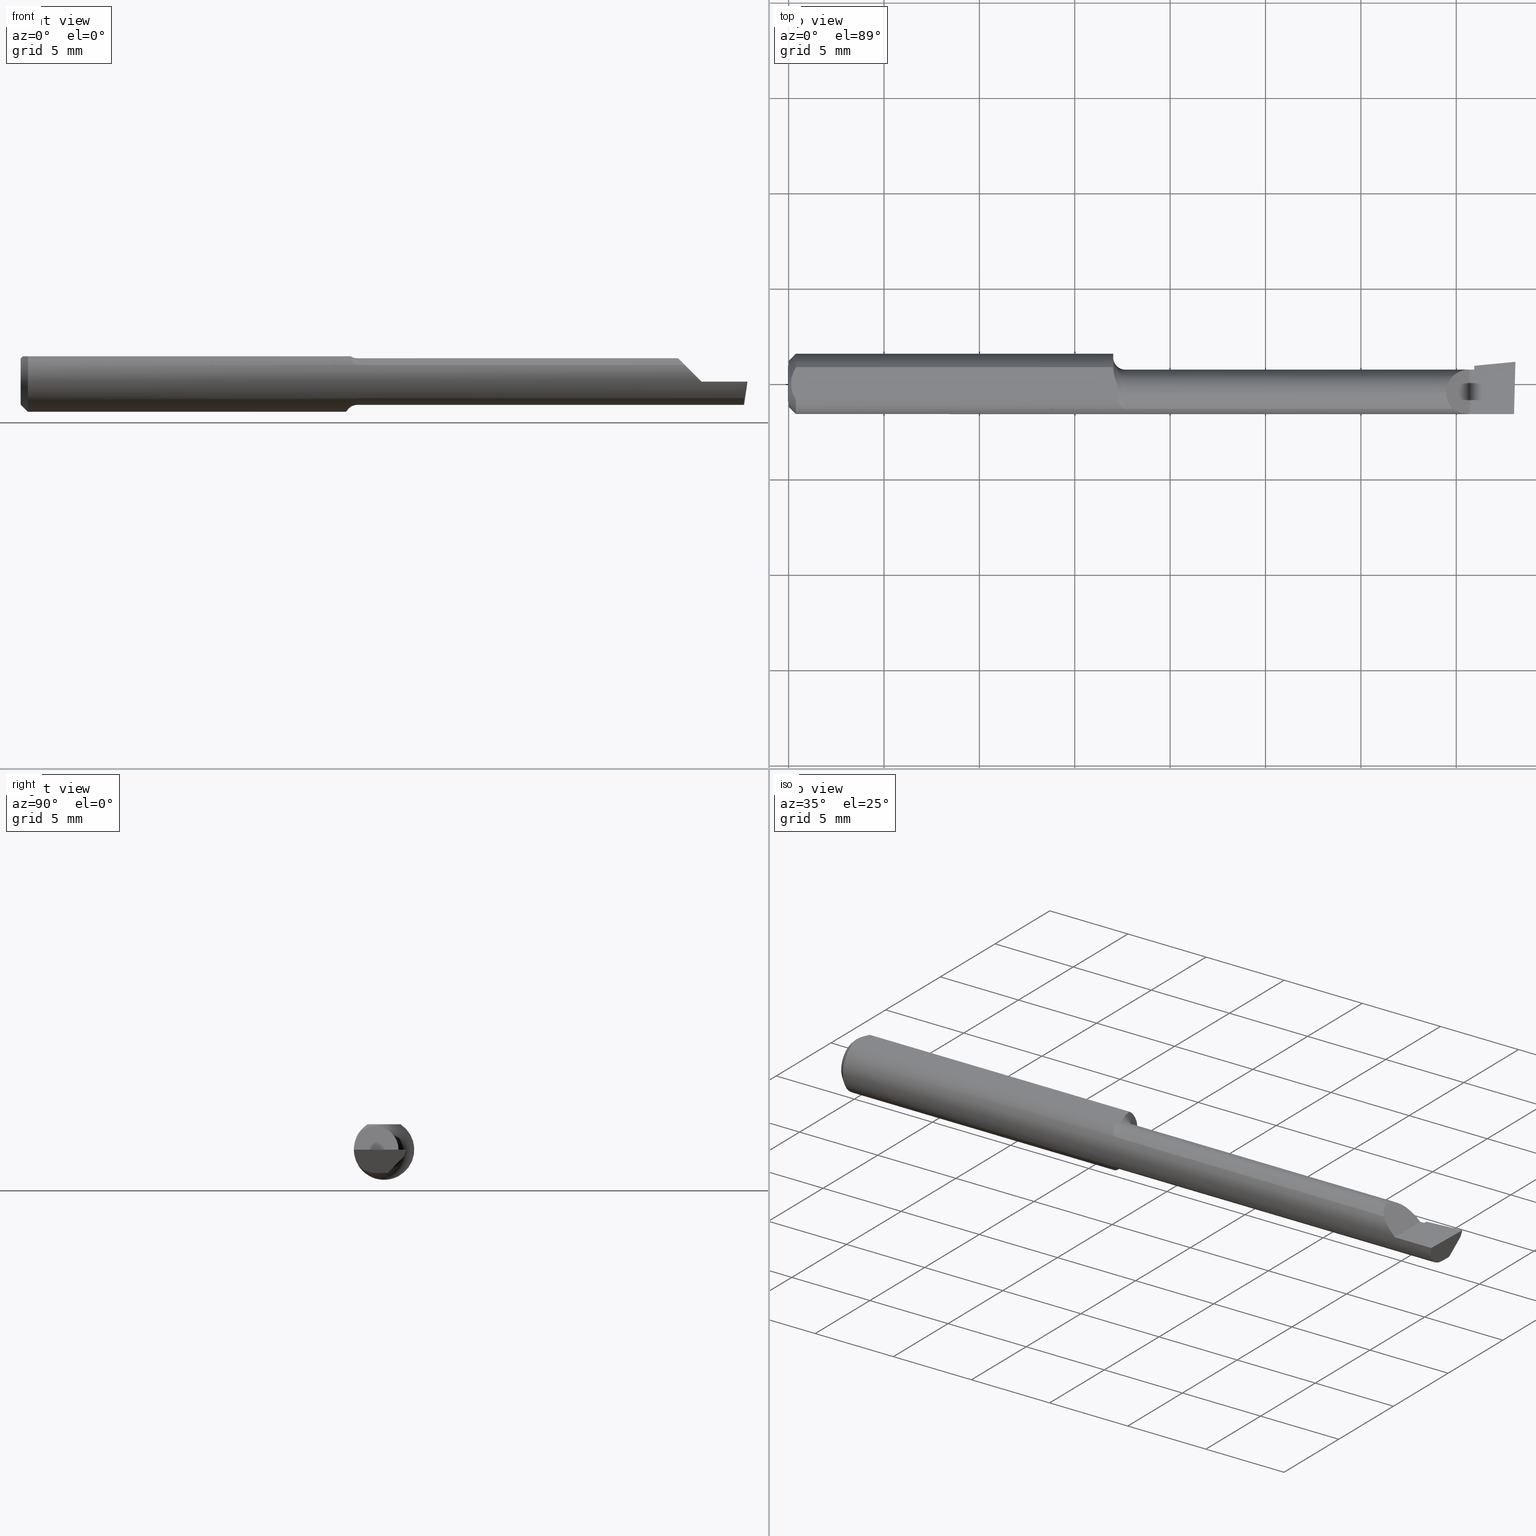
[diagram: canonical four-view strip — front | top / right | iso, engineering-drawing reading convention]
A machine part, canonical four-view strip (front | top / right | iso — engineering-drawing reading convention). The complete STEP part file that produces these views, byte-faithful:
ISO-10303-21;
HEADER;
FILE_DESCRIPTION (( 'STEP AP203' ),
    '1' );
FILE_NAME ('217285-B110700.STEP',
    '2024-04-22T22:16:24',
    ( '' ),
    ( '' ),
    'SwSTEP 2.0',
    'SolidWorks 2022',
    '' );
FILE_SCHEMA (( 'CONFIG_CONTROL_DESIGN' ));
ENDSEC;

DATA;
#1 = CARTESIAN_POINT ( 'NONE',  ( 0.6891789796355746178, -0.05033758282016002894, 0.03680695256572100865 ) ) ;
#2 = CARTESIAN_POINT ( 'NONE',  ( 1.498384822753113355, 0.04264131821163490155, -0.01250862198832625692 ) ) ;
#3 = ADVANCED_BREP_SHAPE_REPRESENTATION ( '217285-B110700', ( #201, #377 ), #418 ) ;
#4 = VERTEX_POINT ( 'NONE', #535 ) ;
#5 = CARTESIAN_POINT ( 'NONE',  ( 0.6936283801985738684, -0.05210000000115985741, 0.03425072991746559714 ) ) ;
#6 = DIRECTION ( 'NONE',  ( 0.000000000000000000, 0.000000000000000000, 1.000000000000000000 ) ) ;
#7 = ORIENTED_EDGE ( 'NONE', *, *, #339, .F. ) ;
#8 = DIRECTION ( 'NONE',  ( -1.000000000000000000, -0.000000000000000000, -0.000000000000000000 ) ) ;
#9 = DIRECTION ( 'NONE',  ( 1.000000000000000000, 0.000000000000000000, 0.000000000000000000 ) ) ;
#10 = ORIENTED_EDGE ( 'NONE', *, *, #544, .F. ) ;
#11 = VECTOR ( 'NONE', #612, 39.37007874015748143 ) ;
#12 = DIRECTION ( 'NONE',  ( 0.000000000000000000, 0.000000000000000000, -1.000000000000000000 ) ) ;
#13 = DIRECTION ( 'NONE',  ( 2.429359850419095176E-34, 4.268512490100411895E-17, 1.000000000000000000 ) ) ;
#14 = LOCAL_TIME ( 15, 16, 24.00000000000000000, #741 ) ;
#15 = EDGE_LOOP ( 'NONE', ( #427, #628, #70, #565 ) ) ;
#16 = ADVANCED_FACE ( 'NONE', ( #730 ), #42, .T. ) ;
#17 = DIRECTION ( 'NONE',  ( 0.000000000000000000, 0.000000000000000000, 1.000000000000000000 ) ) ;
#18 = DIRECTION ( 'NONE',  ( -1.224646799147350495E-16, 0.000000000000000000, -1.000000000000000000 ) ) ;
#19 = AXIS2_PLACEMENT_3D ( 'NONE', #478, #35, #532 ) ;
#20 = VECTOR ( 'NONE', #81, 39.37007874015748143 ) ;
#21 = PRODUCT_DEFINITION_FORMATION_WITH_SPECIFIED_SOURCE ( 'ANY', '', #262, .NOT_KNOWN. ) ;
#22 = CARTESIAN_POINT ( 'NONE',  ( 0.6700000000000000400, 0.03254879782683776229, 0.05235000000000000070 ) ) ;
#23 = CC_DESIGN_PERSON_AND_ORGANIZATION_ASSIGNMENT ( #558, #55, ( #21 ) ) ;
#24 = CARTESIAN_POINT ( 'NONE',  ( 1.415000000000000036, -0.2500000000000000555, 1.040949779275248537E-17 ) ) ;
#25 = EDGE_CURVE ( 'NONE', #99, #4, #219, .T. ) ;
#26 = LINE ( 'NONE', #304, #392 ) ;
#27 = CARTESIAN_POINT ( 'NONE',  ( 1.370749270080770632, -0.05210000000000009068, 0.03425072991922931132 ) ) ;
#28 = CARTESIAN_POINT ( 'NONE',  ( 1.492420971165606458, -0.01839999999999999969, -0.04804999999999998855 ) ) ;
#29 = LINE ( 'NONE', #24, #79 ) ;
#30 = CC_DESIGN_PERSON_AND_ORGANIZATION_ASSIGNMENT ( #489, #737, ( #431 ) ) ;
#31 = CARTESIAN_POINT ( 'NONE',  ( 1.055000000000000160, -0.05210000000000012538, 0.03425072991922926274 ) ) ;
#32 = EDGE_CURVE ( 'NONE', #698, #240, #672, .T. ) ;
#33 = AXIS2_PLACEMENT_3D ( 'NONE', #694, #8, #623 ) ;
#34 = CARTESIAN_POINT ( 'NONE',  ( 1.356949999999999656, 0.009747038327972754393, 0.04804999999999993998 ) ) ;
#35 = DIRECTION ( 'NONE',  ( -1.000000000000000000, -0.000000000000000000, -0.000000000000000000 ) ) ;
#36 = APPROVAL_PERSON_ORGANIZATION ( #435, #114, #215 ) ;
#37 = ORIENTED_EDGE ( 'NONE', *, *, #660, .T. ) ;
#38 = DATE_AND_TIME ( #166, #245 ) ;
#39 =( BOUNDED_CURVE ( )  B_SPLINE_CURVE ( 3, ( #342, #65, #702, #467 ),
 .UNSPECIFIED., .F., .F. ) 
 B_SPLINE_CURVE_WITH_KNOTS ( ( 4, 4 ),
 ( 5.715941252449186827, 6.493234751459776355 ),
 .UNSPECIFIED. ) 
 CURVE ( )  GEOMETRIC_REPRESENTATION_ITEM ( )  RATIONAL_B_SPLINE_CURVE ( ( 1.000000000000000000, 0.9502818019828904728, 0.9502818019828904728, 1.000000000000000000 ) ) 
 REPRESENTATION_ITEM ( '' )  );
#40 = CARTESIAN_POINT ( 'NONE',  ( 1.405000000000000249, 0.02964999999999988131, 1.163414459189982046E-17 ) ) ;
#41 = EDGE_LOOP ( 'NONE', ( #484, #653, #432 ) ) ;
#42 = PLANE ( 'NONE',  #391 ) ;
#43 = DATE_TIME_ROLE ( 'classification_date' ) ;
#44 = CARTESIAN_POINT ( 'NONE',  ( 0.000000000000000000, 0.000000000000000000, 0.000000000000000000 ) ) ;
#45 = B_SPLINE_CURVE_WITH_KNOTS ( 'NONE', 3,
 ( #707, #146, #482, #136, #712, #251 ),
 .UNSPECIFIED., .F., .F.,
 ( 4, 2, 4 ),
 ( 0.002133667072902290223, 0.002585433046183635737, 0.003037199019464981251 ),
 .UNSPECIFIED. ) ;
#46 = ORIENTED_EDGE ( 'NONE', *, *, #284, .T. ) ;
#47 = APPLICATION_PROTOCOL_DEFINITION ( 'international standard', 'config_control_design', 1994, #579 ) ;
#48 = LINE ( 'NONE', #217, #61 ) ;
#49 = EDGE_CURVE ( 'NONE', #533, #734, #104, .T. ) ;
#50 = DIRECTION ( 'NONE',  ( 1.000000000000000000, 0.000000000000000000, 0.000000000000000000 ) ) ;
#51 = SHAPE_DEFINITION_REPRESENTATION ( #94, #3 ) ;
#52 = CARTESIAN_POINT ( 'NONE',  ( 0.6790023436943706248, -0.03635371779854208729, -0.05080473676934859489 ) ) ;
#53 = ORIENTED_EDGE ( 'NONE', *, *, #84, .F. ) ;
#54 = CARTESIAN_POINT ( 'NONE',  ( 0.6702082692914423934, 0.01460127996857727047, -0.06118787137580498914 ) ) ;
#55 = PERSON_AND_ORGANIZATION_ROLE ( 'creator' ) ;
#56 = FACE_OUTER_BOUND ( 'NONE', #500, .T. ) ;
#57 = ORIENTED_EDGE ( 'NONE', *, *, #237, .F. ) ;
#58 = CARTESIAN_POINT ( 'NONE',  ( 0.000000000000000000, 0.000000000000000000, 0.000000000000000000 ) ) ;
#59 = EDGE_CURVE ( 'NONE', #480, #380, #488, .T. ) ;
#60 = FACE_OUTER_BOUND ( 'NONE', #543, .T. ) ;
#61 = VECTOR ( 'NONE', #546, 39.37007874015748143 ) ;
#62 = VERTEX_POINT ( 'NONE', #271 ) ;
#63 = CONICAL_SURFACE ( 'NONE', #300, 0.06235000000000000264, 0.7853981633974601584 ) ;
#64 = CARTESIAN_POINT ( 'NONE',  ( 0.6923254665516394013, -0.05179156103573031439, 0.03472422648579293752 ) ) ;
#65 = CARTESIAN_POINT ( 'NONE',  ( 1.492371467082626468, -0.04299473640227074317, -0.04320958667840185674 ) ) ;
#66 = VERTEX_POINT ( 'NONE', #668 ) ;
#67 = CARTESIAN_POINT ( 'NONE',  ( 0.01500000000000000465, 0.000000000000000000, -0.06235000000000000264 ) ) ;
#68 = CARTESIAN_POINT ( 'NONE',  ( 0.000000000000000000, -0.01839999999999999275, -0.04804999999999994692 ) ) ;
#69 = EDGE_CURVE ( 'NONE', #599, #625, #485, .T. ) ;
#70 = ORIENTED_EDGE ( 'NONE', *, *, #544, .T. ) ;
#71 = FACE_OUTER_BOUND ( 'NONE', #508, .T. ) ;
#72 = DIRECTION ( 'NONE',  ( 0.1053106618241848036, 0.6976485211320169189, 0.7086580314005210823 ) ) ;
#73 = ORIENTED_EDGE ( 'NONE', *, *, #711, .F. ) ;
#74 = ADVANCED_FACE ( 'NONE', ( #428 ), #223, .T. ) ;
#75 = CIRCLE ( 'NONE', #553, 0.04805000000000000243 ) ;
#76 = CARTESIAN_POINT ( 'NONE',  ( 0.6950000000000000622, -0.01839999999999999969, 0.000000000000000000 ) ) ;
#77 = EDGE_CURVE ( 'NONE', #403, #343, #424, .T. ) ;
#78 = CARTESIAN_POINT ( 'NONE',  ( 0.6778289663216180427, -0.001899322570691870226, 0.05234999999999997988 ) ) ;
#79 = VECTOR ( 'NONE', #357, 39.37007874015748143 ) ;
#80 = TOROIDAL_SURFACE ( 'NONE', #181, 0.07304999999999992055, 0.02500000000000001180 ) ;
#81 = DIRECTION ( 'NONE',  ( 0.000000000000000000, -0.6963153109074924352, -0.7177360153954949196 ) ) ;
#82 = DIRECTION ( 'NONE',  ( 0.000000000000000000, 0.000000000000000000, -1.000000000000000000 ) ) ;
#83 = CARTESIAN_POINT ( 'NONE',  ( 1.361790413321597892, -0.04299473640227071541, 0.04320958667840185674 ) ) ;
#84 = EDGE_CURVE ( 'NONE', #119, #289, #629, .T. ) ;
#85 = EDGE_CURVE ( 'NONE', #539, #560, #652, .T. ) ;
#86 = ORIENTED_EDGE ( 'NONE', *, *, #116, .F. ) ;
#87 = ORIENTED_EDGE ( 'NONE', *, *, #303, .T. ) ;
#88 = CARTESIAN_POINT ( 'NONE',  ( 1.493233423732482024, -0.05210000000000012538, -0.03425072991922926274 ) ) ;
#89 = ORIENTED_EDGE ( 'NONE', *, *, #358, .F. ) ;
#90 = ORIENTED_EDGE ( 'NONE', *, *, #588, .F. ) ;
#91 = TOROIDAL_SURFACE ( 'NONE', #280, 0.07304999999999992055, 0.02500000000000001180 ) ;
#92 = PERSON_AND_ORGANIZATION ( #716, #471 ) ;
#93 = CARTESIAN_POINT ( 'NONE',  ( 1.380994055934046782, -0.05883495956508443675, 0.02400594406595336905 ) ) ;
#94 = PRODUCT_DEFINITION_SHAPE ( 'NONE', 'NONE',  #431 ) ;
#95 = ORIENTED_EDGE ( 'NONE', *, *, #49, .F. ) ;
#96 = EDGE_LOOP ( 'NONE', ( #46, #692, #161, #459 ) ) ;
#97 = DATE_TIME_ROLE ( 'creation_date' ) ;
#98 = DIRECTION ( 'NONE',  ( 0.000000000000000000, 1.000000000000000000, -4.268512490100410663E-17 ) ) ;
#99 = VERTEX_POINT ( 'NONE', #283 ) ;
#100 = ORIENTED_EDGE ( 'NONE', *, *, #303, .F. ) ;
#101 = DATE_AND_TIME ( #383, #14 ) ;
#102 = ADVANCED_FACE ( 'NONE', ( #338 ), #626, .T. ) ;
#103 = CARTESIAN_POINT ( 'NONE',  ( 1.415000000000000036, 0.03746543090321039632, 1.856802933193678953E-16 ) ) ;
#104 = LINE ( 'NONE', #254, #107 ) ;
#105 = UNCERTAINTY_MEASURE_WITH_UNIT (LENGTH_MEASURE( 1.000000000000000082E-05 ), #584, 'distance_accuracy_value', 'NONE');
#106 = COORDINATED_UNIVERSAL_TIME_OFFSET ( 8, 0, .BEHIND. ) ;
#107 = VECTOR ( 'NONE', #325, 39.37007874015748854 ) ;
#108 = DIRECTION ( 'NONE',  ( 1.000000000000000000, 0.000000000000000000, 0.000000000000000000 ) ) ;
#109 = ORIENTED_EDGE ( 'NONE', *, *, #25, .T. ) ;
#110 = APPLICATION_CONTEXT ( 'configuration controlled 3d designs of mechanical parts and assemblies' ) ;
#111 = DIRECTION ( 'NONE',  ( -1.000000000000000000, -0.000000000000000000, -0.000000000000000000 ) ) ;
#112 = APPLICATION_PROTOCOL_DEFINITION ( 'international standard', 'config_control_design', 1994, #110 ) ;
#113 = CARTESIAN_POINT ( 'NONE',  ( 0.6747104858884209744, -0.02227973916747847880, -0.05837485801745211089 ) ) ;
#114 = APPROVAL ( #677, 'UNSPECIFIED' ) ;
#115 = ORIENTED_EDGE ( 'NONE', *, *, #472, .F. ) ;
#116 = EDGE_CURVE ( 'NONE', #99, #512, #549, .T. ) ;
#117 = DIRECTION ( 'NONE',  ( 0.000000000000000000, 0.000000000000000000, 1.000000000000000000 ) ) ;
#118 = FACE_OUTER_BOUND ( 'NONE', #257, .T. ) ;
#119 = VERTEX_POINT ( 'NONE', #179 ) ;
#120 = CARTESIAN_POINT ( 'NONE',  ( 0.6723860608652274529, -0.01052139226165771727, -0.06200658662318049574 ) ) ;
#121 = CARTESIAN_POINT ( 'NONE',  ( 1.493103169438388500, 0.007652100972630319388, -0.04804999999999998855 ) ) ;
#122 = AXIS2_PLACEMENT_3D ( 'NONE', #231, #13, #345 ) ;
#123 = ORIENTED_EDGE ( 'NONE', *, *, #69, .F. ) ;
#124 = PLANE ( 'NONE',  #374 ) ;
#125 = EDGE_CURVE ( 'NONE', #512, #99, #226, .T. ) ;
#126 = LINE ( 'NONE', #455, #183 ) ;
#127 = ORIENTED_EDGE ( 'NONE', *, *, #312, .F. ) ;
#128 = CARTESIAN_POINT ( 'NONE',  ( 0.6866024100878113101, -0.04843664215652601635, 0.03931692004732145751 ) ) ;
#129 = FACE_OUTER_BOUND ( 'NONE', #611, .T. ) ;
#130 = EDGE_CURVE ( 'NONE', #172, #274, #352, .T. ) ;
#131 = ORIENTED_EDGE ( 'NONE', *, *, #700, .T. ) ;
#132 = LINE ( 'NONE', #68, #506 ) ;
#133 = DIRECTION ( 'NONE',  ( 0.000000000000000000, 0.000000000000000000, 1.000000000000000000 ) ) ;
#134 = ADVANCED_FACE ( 'NONE', ( #71 ), #578, .T. ) ;
#135 = EDGE_CURVE ( 'NONE', #4, #480, #563, .T. ) ;
#136 = CARTESIAN_POINT ( 'NONE',  ( 0.006057557792978150897, -0.01187252718384441963, 0.05234999999999998682 ) ) ;
#137 = CARTESIAN_POINT ( 'NONE',  ( 1.356949999999999656, -0.03117368152160950728, 0.04804999999999994692 ) ) ;
#138 = CARTESIAN_POINT ( 'NONE',  ( 1.492263437268387616, -0.2497974109750948912, 9.474556785672113677E-19 ) ) ;
#139 = LINE ( 'NONE', #298, #410 ) ;
#140 = CIRCLE ( 'NONE', #705, 0.04804999999999994692 ) ;
#141 = CC_DESIGN_DATE_AND_TIME_ASSIGNMENT ( #38, #97, ( #431 ) ) ;
#142 = CARTESIAN_POINT ( 'NONE',  ( 1.415000000000000036, 0.03316540489603619218, -0.01400000000000000203 ) ) ;
#143 = EDGE_CURVE ( 'NONE', #596, #698, #704, .T. ) ;
#144 = CARTESIAN_POINT ( 'NONE',  ( 0.01500000000000185039, -0.03386738844380016850, 0.05235000000000000070 ) ) ;
#145 = ORIENTED_EDGE ( 'NONE', *, *, #276, .T. ) ;
#146 = CARTESIAN_POINT ( 'NONE',  ( 0.01216137397042176341, -0.02864146636719542074, 0.05235000000000000070 ) ) ;
#147 = CARTESIAN_POINT ( 'NONE',  ( 0.000000000000000000, -0.01839999999999999969, 0.04804999999999994692 ) ) ;
#148 = ADVANCED_FACE ( 'NONE', ( #630 ), #124, .F. ) ;
#149 = EDGE_LOOP ( 'NONE', ( #538, #293 ) ) ;
#150 = DIRECTION ( 'NONE',  ( 1.000000000000000000, 0.000000000000000000, 0.000000000000000000 ) ) ;
#151 = CARTESIAN_POINT ( 'NONE',  ( 0.000000000000000000, 0.000000000000000000, 0.000000000000000000 ) ) ;
#152 = DIRECTION ( 'NONE',  ( 0.000000000000000000, -0.6963153109074924352, -0.7177360153954949196 ) ) ;
#153 = ORIENTED_EDGE ( 'NONE', *, *, #235, .T. ) ;
#154 = CARTESIAN_POINT ( 'NONE',  ( 1.510364203804932526, 0.04234793331252790366, -0.01399999999999999856 ) ) ;
#155 = AXIS2_PLACEMENT_3D ( 'NONE', #305, #247, #529 ) ;
#156 = COORDINATED_UNIVERSAL_TIME_OFFSET ( 8, 0, .BEHIND. ) ;
#157 = LOCAL_TIME ( 15, 16, 24.00000000000000000, #162 ) ;
#158 = PLANE ( 'NONE',  #726 ) ;
#159 = EDGE_LOOP ( 'NONE', ( #90, #366, #115 ) ) ;
#160 = APPROVAL ( #722, 'UNSPECIFIED' ) ;
#161 = ORIENTED_EDGE ( 'NONE', *, *, #614, .T. ) ;
#162 = COORDINATED_UNIVERSAL_TIME_OFFSET ( 8, 0, .BEHIND. ) ;
#163 = CARTESIAN_POINT ( 'NONE',  ( 0.6928708008506145877, -0.05210000000000022946, -0.03425072991922910315 ) ) ;
#164 = ORIENTED_EDGE ( 'NONE', *, *, #711, .T. ) ;
#165 = ORIENTED_EDGE ( 'NONE', *, *, #369, .F. ) ;
#166 = CALENDAR_DATE ( 2024, 22, 4 ) ;
#167 = CARTESIAN_POINT ( 'NONE',  ( 1.493233423732482024, -0.05210000000000012538, -0.03425072991922926274 ) ) ;
#168 = ORIENTED_EDGE ( 'NONE', *, *, #200, .F. ) ;
#169 = CARTESIAN_POINT ( 'NONE',  ( 0.6950000000000000622, -0.01839999999999999969, 0.000000000000000000 ) ) ;
#170 = LINE ( 'NONE', #441, #664 ) ;
#171 = VECTOR ( 'NONE', #194, 39.37007874015748143 ) ;
#172 = VERTEX_POINT ( 'NONE', #67 ) ;
#173 = DIRECTION ( 'NONE',  ( -1.000000000000000000, 5.691349986800549142E-18, -0.000000000000000000 ) ) ;
#174 = DIRECTION ( 'NONE',  ( -0.000000000000000000, 0.000000000000000000, 1.000000000000000000 ) ) ;
#175 = EDGE_LOOP ( 'NONE', ( #453, #265, #381, #504, #225, #519 ) ) ;
#176 = DIRECTION ( 'NONE',  ( 0.000000000000000000, 0.000000000000000000, 1.000000000000000000 ) ) ;
#177 = CARTESIAN_POINT ( 'NONE',  ( 1.055000000000000160, -0.05210000000000012538, -0.03425072991922926274 ) ) ;
#178 = ORIENTED_EDGE ( 'NONE', *, *, #594, .T. ) ;
#179 = CARTESIAN_POINT ( 'NONE',  ( 0.6950000000000000622, -0.01839999999999999969, 0.04804999999999990529 ) ) ;
#180 = DIRECTION ( 'NONE',  ( 0.000000000000000000, -7.598598113218357399E-17, -1.000000000000000000 ) ) ;
#181 = AXIS2_PLACEMENT_3D ( 'NONE', #76, #639, #6 ) ;
#182 = ORIENTED_EDGE ( 'NONE', *, *, #405, .F. ) ;
#183 = VECTOR ( 'NONE', #406, 39.37007874015748143 ) ;
#184 = CARTESIAN_POINT ( 'NONE',  ( 0.6700000000000000400, 0.05464999999999992086, 0.000000000000000000 ) ) ;
#185 = ADVANCED_FACE ( 'NONE', ( #287 ), #460, .T. ) ;
#186 = DIRECTION ( 'NONE',  ( 0.000000000000000000, 0.2936076258024064023, 0.9559260233253795702 ) ) ;
#187 = ORIENTED_EDGE ( 'NONE', *, *, #421, .F. ) ;
#188 = CARTESIAN_POINT ( 'NONE',  ( 0.6739435274990672742, -0.01839999999999994418, -0.05957316929625284391 ) ) ;
#189 = CARTESIAN_POINT ( 'NONE',  ( 0.000000000000000000, 0.000000000000000000, -0.04734999999999964237 ) ) ;
#190 = ADVANCED_FACE ( 'NONE', ( #442 ), #641, .F. ) ;
#191 = AXIS2_PLACEMENT_3D ( 'NONE', #582, #291, #17 ) ;
#192 = AXIS2_PLACEMENT_3D ( 'NONE', #301, #248, #82 ) ;
#193 =( BOUNDED_CURVE ( )  B_SPLINE_CURVE ( 3, ( #420, #34, #709, #473 ),
 .UNSPECIFIED., .F., .F. ) 
 B_SPLINE_CURVE_WITH_KNOTS ( ( 4, 4 ),
 ( 0.000000000000000000, 1.570796326794896558 ),
 .UNSPECIFIED. ) 
 CURVE ( )  GEOMETRIC_REPRESENTATION_ITEM ( )  RATIONAL_B_SPLINE_CURVE ( ( 1.000000000000000000, 0.8047378541243649375, 0.8047378541243649375, 1.000000000000000000 ) ) 
 REPRESENTATION_ITEM ( '' )  );
#194 = DIRECTION ( 'NONE',  ( 0.02617694830787660465, 0.9996573249755572599, -3.158139334224220088E-18 ) ) ;
#195 = DIRECTION ( 'NONE',  ( 0.7071067811865391350, 0.000000000000000000, -0.7071067811865558994 ) ) ;
#196 = CARTESIAN_POINT ( 'NONE',  ( 0.6950000000000000622, -0.05210000000000024334, 0.03425072991922908927 ) ) ;
#197 = CARTESIAN_POINT ( 'NONE',  ( 0.6781439896686971558, -0.03386738844377056717, 0.05235000000000000070 ) ) ;
#198 = CARTESIAN_POINT ( 'NONE',  ( 1.500000000000000222, -0.2500000000000000555, 0.000000000000000000 ) ) ;
#199 = CARTESIAN_POINT ( 'NONE',  ( 0.6801689947020402860, -0.01001121285792194726, 0.05235000000000000764 ) ) ;
#200 = EDGE_CURVE ( 'NONE', #625, #675, #676, .T. ) ;
#201 = MANIFOLD_SOLID_BREP ( 'Extrude7', #703 ) ;
#202 = CARTESIAN_POINT ( 'NONE',  ( 0.6700000000000000400, 0.03254879782683776229, 0.05235000000000000070 ) ) ;
#203 = EDGE_LOOP ( 'NONE', ( #57, #310, #605, #394, #253, #182, #7 ) ) ;
#204 = DIRECTION ( 'NONE',  ( -0.000000000000000000, 0.000000000000000000, 1.000000000000000000 ) ) ;
#205 = FACE_OUTER_BOUND ( 'NONE', #577, .T. ) ;
#206 = CARTESIAN_POINT ( 'NONE',  ( 0.6757332775895888988, 0.004426912553965423741, 0.05234999999999998682 ) ) ;
#207 = ORIENTED_EDGE ( 'NONE', *, *, #502, .F. ) ;
#208 = ORIENTED_EDGE ( 'NONE', *, *, #125, .T. ) ;
#209 = CALENDAR_DATE ( 2024, 22, 4 ) ;
#210 = CARTESIAN_POINT ( 'NONE',  ( 1.497451155291631864, 0.008070764392015438576, -0.04804999999999998855 ) ) ;
#211 = EDGE_CURVE ( 'NONE', #446, #266, #576, .T. ) ;
#212 = EDGE_CURVE ( 'NONE', #512, #172, #139, .T. ) ;
#213 = VERTEX_POINT ( 'NONE', #309 ) ;
#214 = AXIS2_PLACEMENT_3D ( 'NONE', #393, #620, #430 ) ;
#215 = APPROVAL_ROLE ( '' ) ;
#216 = VECTOR ( 'NONE', #399, 39.37007874015748143 ) ;
#217 = CARTESIAN_POINT ( 'NONE',  ( 0.000000000000000000, -0.03386738844375222768, 0.05234999999999997988 ) ) ;
#218 = ORIENTED_EDGE ( 'NONE', *, *, #143, .T. ) ;
#219 = LINE ( 'NONE', #434, #340 ) ;
#220 = DATE_AND_TIME ( #606, #643 ) ;
#221 = CARTESIAN_POINT ( 'NONE',  ( 0.6880636144450135161, -0.04963912592730913842, -0.03775824298307021293 ) ) ;
#222 = ORIENTED_EDGE ( 'NONE', *, *, #382, .F. ) ;
#223 = PLANE ( 'NONE',  #297 ) ;
#224 = DIRECTION ( 'NONE',  ( 0.000000000000000000, 0.000000000000000000, -1.000000000000000000 ) ) ;
#225 = ORIENTED_EDGE ( 'NONE', *, *, #449, .T. ) ;
#226 = CIRCLE ( 'NONE', #680, 0.04734999999999964237 ) ;
#227 = CALENDAR_DATE ( 2024, 22, 4 ) ;
#228 = DIRECTION ( 'NONE',  ( 0.000000000000000000, 0.000000000000000000, -1.000000000000000000 ) ) ;
#229 = ORIENTED_EDGE ( 'NONE', *, *, #382, .T. ) ;
#230 = CARTESIAN_POINT ( 'NONE',  ( 0.6901117046627790463, -0.05090166660896893597, 0.03601608024180035644 ) ) ;
#231 = CARTESIAN_POINT ( 'NONE',  ( 1.500000000000000222, -0.01839999999999999969, -0.04804999999999998855 ) ) ;
#232 = ORIENTED_EDGE ( 'NONE', *, *, #212, .F. ) ;
#233 = CARTESIAN_POINT ( 'NONE',  ( 0.000000000000000000, -0.01839999999999999969, 0.000000000000000000 ) ) ;
#234 = DIRECTION ( 'NONE',  ( -1.000000000000000000, -0.000000000000000000, -0.000000000000000000 ) ) ;
#235 = EDGE_CURVE ( 'NONE', #240, #261, #733, .T. ) ;
#236 = ORIENTED_EDGE ( 'NONE', *, *, #689, .F. ) ;
#237 = EDGE_CURVE ( 'NONE', #603, #62, #477, .T. ) ;
#238 = CARTESIAN_POINT ( 'NONE',  ( 0.01218518006020415101, 0.02868529347538066598, 0.05235000000000000070 ) ) ;
#239 = CARTESIAN_POINT ( 'NONE',  ( 1.415000000000000036, 0.03394043341024438609, -0.01147666661066422747 ) ) ;
#240 = VERTEX_POINT ( 'NONE', #27 ) ;
#241 = CARTESIAN_POINT ( 'NONE',  ( 0.6764444859557653400, 0.002321921504986928370, 0.05234999999999998682 ) ) ;
#242 = CARTESIAN_POINT ( 'NONE',  ( 0.6700000000000000400, -0.01839999999999999969, 0.000000000000000000 ) ) ;
#243 = ORIENTED_EDGE ( 'NONE', *, *, #69, .T. ) ;
#244 = DIMENSIONAL_EXPONENTS ( 1.000000000000000000, 0.000000000000000000, 0.000000000000000000, 0.000000000000000000, 0.000000000000000000, 0.000000000000000000, 0.000000000000000000 ) ;
#245 = LOCAL_TIME ( 15, 16, 24.00000000000000000, #156 ) ;
#246 = LINE ( 'NONE', #654, #706 ) ;
#247 = DIRECTION ( 'NONE',  ( -0.9922060308645477278, 0.02598182930469673801, 0.1218693434051488778 ) ) ;
#248 = DIRECTION ( 'NONE',  ( 1.000000000000000000, 0.000000000000000000, 0.000000000000000000 ) ) ;
#249 = CARTESIAN_POINT ( 'NONE',  ( 1.497171920470529161, -0.06235000000000005121, 3.552677088412709094E-19 ) ) ;
#250 = ADVANCED_FACE ( 'NONE', ( #483 ), #593, .F. ) ;
#251 = CARTESIAN_POINT ( 'NONE',  ( 0.004999999999989946514, 7.898418262501303575E-16, 0.05235000000000000070 ) ) ;
#252 = CARTESIAN_POINT ( 'NONE',  ( 1.494315395341277553, -0.05883495956508443675, -0.02400594406595338293 ) ) ;
#253 = ORIENTED_EDGE ( 'NONE', *, *, #700, .F. ) ;
#254 = CARTESIAN_POINT ( 'NONE',  ( 1.510364203804932526, 0.04234793331252790366, -0.01399999999999999856 ) ) ;
#255 = LINE ( 'NONE', #659, #493 ) ;
#256 = CC_DESIGN_APPROVAL ( #491, ( #452 ) ) ;
#257 = EDGE_LOOP ( 'NONE', ( #306, #438, #53, #100, #681, #615, #550, #286 ) ) ;
#258 = DIRECTION ( 'NONE',  ( 0.7071067811865391350, 8.659560562355035164E-17, 0.7071067811865558994 ) ) ;
#259 = EDGE_CURVE ( 'NONE', #480, #172, #566, .T. ) ;
#260 = PLANE ( 'NONE',  #433 ) ;
#261 = VERTEX_POINT ( 'NONE', #720 ) ;
#262 = PRODUCT ( '217285-B110700', '217285-B110700', '', ( #372 ) ) ;
#263 = ORIENTED_EDGE ( 'NONE', *, *, #590, .T. ) ;
#264 = DIRECTION ( 'NONE',  ( 0.000000000000000000, -1.000000000000000000, 0.000000000000000000 ) ) ;
#265 = ORIENTED_EDGE ( 'NONE', *, *, #85, .T. ) ;
#266 = VERTEX_POINT ( 'NONE', #474 ) ;
#267 = APPROVAL_ROLE ( '' ) ;
#268 = CIRCLE ( 'NONE', #192, 0.06235000000000000264 ) ;
#269 = CARTESIAN_POINT ( 'NONE',  ( 0.6868557543361659690, -0.04856891343705606323, -0.03913748562448242374 ) ) ;
#270 = EDGE_LOOP ( 'NONE', ( #222, #243, #497, #350 ) ) ;
#271 = CARTESIAN_POINT ( 'NONE',  ( 0.6809817975471365026, -0.01840000000000274055, 0.05235000000000000070 ) ) ;
#272 = APPROVAL_ROLE ( '' ) ;
#273 = LINE ( 'NONE', #607, #551 ) ;
#274 = VERTEX_POINT ( 'NONE', #144 ) ;
#275 = CARTESIAN_POINT ( 'NONE',  ( 0.6739435274990672742, -0.01839999999999994418, -0.05957316929625284391 ) ) ;
#276 = EDGE_CURVE ( 'NONE', #572, #240, #443, .T. ) ;
#277 = FACE_OUTER_BOUND ( 'NONE', #15, .T. ) ;
#278 = ORIENTED_EDGE ( 'NONE', *, *, #312, .T. ) ;
#279 = DIRECTION ( 'NONE',  ( -1.000000000000000000, -0.000000000000000000, -0.000000000000000000 ) ) ;
#280 = AXIS2_PLACEMENT_3D ( 'NONE', #738, #665, #436 ) ;
#281 = DIRECTION ( 'NONE',  ( -1.000000000000000000, -0.000000000000000000, -0.000000000000000000 ) ) ;
#282 = ORIENTED_EDGE ( 'NONE', *, *, #211, .F. ) ;
#283 = CARTESIAN_POINT ( 'NONE',  ( 0.000000000000000000, 6.717187693324805358E-18, 0.04734999999999964237 ) ) ;
#284 = EDGE_CURVE ( 'NONE', #343, #385, #29, .T. ) ;
#285 = FACE_OUTER_BOUND ( 'NONE', #203, .T. ) ;
#286 = ORIENTED_EDGE ( 'NONE', *, *, #461, .F. ) ;
#287 = FACE_OUTER_BOUND ( 'NONE', #685, .T. ) ;
#288 = DIRECTION ( 'NONE',  ( -0.000000000000000000, 1.000000000000000000, -0.000000000000000000 ) ) ;
#289 = VERTEX_POINT ( 'NONE', #422 ) ;
#290 = CARTESIAN_POINT ( 'NONE',  ( 0.004999999999989946514, 7.898418262501303575E-16, 0.05235000000000000070 ) ) ;
#291 = DIRECTION ( 'NONE',  ( -1.000000000000000000, -0.000000000000000000, -0.000000000000000000 ) ) ;
#292 = VECTOR ( 'NONE', #735, 39.37007874015748143 ) ;
#293 = ORIENTED_EDGE ( 'NONE', *, *, #330, .T. ) ;
#294 = AXIS2_PLACEMENT_3D ( 'NONE', #634, #281, #507 ) ;
#295 = DIRECTION ( 'NONE',  ( -1.000000000000000000, -0.000000000000000000, -0.000000000000000000 ) ) ;
#296 = DIRECTION ( 'NONE',  ( 0.000000000000000000, -0.6963153109074924352, -0.7177360153954949196 ) ) ;
#297 = AXIS2_PLACEMENT_3D ( 'NONE', #718, #721, #204 ) ;
#298 = CARTESIAN_POINT ( 'NONE',  ( 0.01500000000000000465, 0.000000000000000000, -0.06235000000000000264 ) ) ;
#299 = AXIS2_PLACEMENT_3D ( 'NONE', #379, #264, #224 ) ;
#300 = AXIS2_PLACEMENT_3D ( 'NONE', #592, #649, #536 ) ;
#301 = CARTESIAN_POINT ( 'NONE',  ( 0.6700000000000000400, 0.000000000000000000, 0.000000000000000000 ) ) ;
#302 = CARTESIAN_POINT ( 'NONE',  ( 0.6699999999999991518, 0.02370330699131434002, 0.05235000000000000070 ) ) ;
#303 = EDGE_CURVE ( 'NONE', #261, #119, #655, .T. ) ;
#304 = CARTESIAN_POINT ( 'NONE',  ( 1.415000000000000036, 0.01335851473338080936, -0.03441620828959360973 ) ) ;
#305 = CARTESIAN_POINT ( 'NONE',  ( 1.490100436386402993, -0.04484455226154455965, -0.06130493938609107157 ) ) ;
#306 = ORIENTED_EDGE ( 'NONE', *, *, #588, .T. ) ;
#307 = ORIENTED_EDGE ( 'NONE', *, *, #353, .F. ) ;
#308 = LINE ( 'NONE', #138, #171 ) ;
#309 = CARTESIAN_POINT ( 'NONE',  ( 1.500000000000005551, 0.04565000000000925956, 2.866279458899363243E-14 ) ) ;
#310 = ORIENTED_EDGE ( 'NONE', *, *, #590, .F. ) ;
#311 = VECTOR ( 'NONE', #72, 39.37007874015748143 ) ;
#312 = EDGE_CURVE ( 'NONE', #385, #213, #598, .T. ) ;
#313 = DIRECTION ( 'NONE',  ( -0.06894566448119622548, 0.7160281025913036723, -0.6946583704589932573 ) ) ;
#314 = CARTESIAN_POINT ( 'NONE',  ( 0.6809817975474691254, -0.02106709414031688460, 0.05235000000000000070 ) ) ;
#315 = LOCAL_TIME ( 15, 16, 24.00000000000000000, #444 ) ;
#316 = ORIENTED_EDGE ( 'NONE', *, *, #85, .F. ) ;
#317 = ORIENTED_EDGE ( 'NONE', *, *, #614, .F. ) ;
#318 = APPROVAL_DATE_TIME ( #101, #114 ) ;
#319 = LINE ( 'NONE', #210, #361 ) ;
#320 = ORIENTED_EDGE ( 'NONE', *, *, #594, .F. ) ;
#321 = ORIENTED_EDGE ( 'NONE', *, *, #556, .F. ) ;
#322 = DESIGN_CONTEXT ( 'detailed design', #110, 'design' ) ;
#323 = PERSON_AND_ORGANIZATION_ROLE ( 'classification_officer' ) ;
#324 = DIRECTION ( 'NONE',  ( 1.000000000000000000, 0.000000000000000000, 0.000000000000000000 ) ) ;
#325 = DIRECTION ( 'NONE',  ( -0.9953961983671800740, -0.09584575252021031166, 0.000000000000000000 ) ) ;
#326 = AXIS2_PLACEMENT_3D ( 'NONE', #58, #111, #447 ) ;
#327 = APPROVAL_DATE_TIME ( #387, #491 ) ;
#328 = AXIS2_PLACEMENT_3D ( 'NONE', #531, #414, #359 ) ;
#329 = CARTESIAN_POINT ( 'NONE',  ( 0.000000000000000000, -0.01839999999999999969, 0.000000000000000000 ) ) ;
#330 = EDGE_CURVE ( 'NONE', #580, #456, #255, .T. ) ;
#331 = EDGE_LOOP ( 'NONE', ( #165, #164, #127, #608, #547, #10 ) ) ;
#332 = DIRECTION ( 'NONE',  ( -1.000000000000000000, -0.000000000000000000, -0.000000000000000000 ) ) ;
#333 = PERSON_AND_ORGANIZATION ( #716, #471 ) ;
#334 = ORIENTED_EDGE ( 'NONE', *, *, #32, .F. ) ;
#335 = DIRECTION ( 'NONE',  ( -0.000000000000000000, 0.000000000000000000, 1.000000000000000000 ) ) ;
#336 = PLANE ( 'NONE',  #341 ) ;
#337 = ORIENTED_EDGE ( 'NONE', *, *, #339, .T. ) ;
#338 = FACE_OUTER_BOUND ( 'NONE', #515, .T. ) ;
#339 = EDGE_CURVE ( 'NONE', #62, #596, #562, .T. ) ;
#340 = VECTOR ( 'NONE', #258, 39.37007874015748143 ) ;
#341 = AXIS2_PLACEMENT_3D ( 'NONE', #44, #324, #228 ) ;
#342 = CARTESIAN_POINT ( 'NONE',  ( 1.493233423732482024, -0.05210000000000012538, -0.03425072991922926274 ) ) ;
#343 = VERTEX_POINT ( 'NONE', #415 ) ;
#344 = CARTESIAN_POINT ( 'NONE',  ( 1.415000000000000036, 0.03746543090320910568, 0.000000000000000000 ) ) ;
#345 = DIRECTION ( 'NONE',  ( 0.000000000000000000, -1.000000000000000000, 4.268512490100411895E-17 ) ) ;
#346 = ORIENTED_EDGE ( 'NONE', *, *, #130, .T. ) ;
#347 = DIRECTION ( 'NONE',  ( -1.000000000000000000, -0.000000000000000000, -0.000000000000000000 ) ) ;
#348 = LINE ( 'NONE', #520, #589 ) ;
#349 = CC_DESIGN_DATE_AND_TIME_ASSIGNMENT ( #220, #43, ( #452 ) ) ;
#350 = ORIENTED_EDGE ( 'NONE', *, *, #472, .T. ) ;
#351 = PLANE ( 'NONE',  #122 ) ;
#352 = CIRCLE ( 'NONE', #33, 0.06235000000000000264 ) ;
#353 = EDGE_CURVE ( 'NONE', #456, #662, #647, .T. ) ;
#354 =( LENGTH_UNIT ( ) NAMED_UNIT ( * ) SI_UNIT ( $, .METRE. ) );
#355 = B_SPLINE_CURVE_WITH_KNOTS ( 'NONE', 3,
 ( #384, #163, #548, #221, #269, #496, #396, #52, #732, #742, #113, #727 ),
 .UNSPECIFIED., .F., .F.,
 ( 4, 2, 2, 2, 2, 4 ),
 ( 1.968188672663559732E-07, 0.0001598826679621229488, 0.0003195685170569795351, 0.0006389402152466981287, 0.0009583119134364166680, 0.001277683611626135316 ),
 .UNSPECIFIED. ) ;
#356 = CARTESIAN_POINT ( 'NONE',  ( 1.415000000000000036, 0.0001316211261978900615, -0.04805000000000000243 ) ) ;
#357 = DIRECTION ( 'NONE',  ( 0.000000000000000000, 1.000000000000000000, 0.000000000000000000 ) ) ;
#358 = EDGE_CURVE ( 'NONE', #66, #539, #355, .T. ) ;
#359 = DIRECTION ( 'NONE',  ( 0.000000000000000000, -8.537024980200821325E-17, 1.000000000000000000 ) ) ;
#360 = VECTOR ( 'NONE', #173, 39.37007874015748143 ) ;
#361 = VECTOR ( 'NONE', #445, 39.37007874015748854 ) ;
#362 = CIRCLE ( 'NONE', #328, 0.02500000000000000486 ) ;
#363 = DIRECTION ( 'NONE',  ( -1.000000000000000000, -0.000000000000000000, -0.000000000000000000 ) ) ;
#364 = CARTESIAN_POINT ( 'NONE',  ( 1.392739685260043325, -0.06235000000000000264, 0.01226031473995679161 ) ) ;
#365 = ORIENTED_EDGE ( 'NONE', *, *, #511, .T. ) ;
#366 = ORIENTED_EDGE ( 'NONE', *, *, #353, .T. ) ;
#367 = DIRECTION ( 'NONE',  ( 0.000000000000000000, 0.000000000000000000, 1.000000000000000000 ) ) ;
#368 = DIRECTION ( 'NONE',  ( -1.000000000000000000, -0.000000000000000000, -0.000000000000000000 ) ) ;
#369 = EDGE_CURVE ( 'NONE', #266, #572, #170, .T. ) ;
#370 = ORIENTED_EDGE ( 'NONE', *, *, #211, .T. ) ;
#371 = CARTESIAN_POINT ( 'NONE',  ( 0.6950000000000000622, -0.01839999999999999969, 0.000000000000000000 ) ) ;
#372 = MECHANICAL_CONTEXT ( 'NONE', #579, 'mechanical' ) ;
#373 = CARTESIAN_POINT ( 'NONE',  ( 0.6809817975471365026, -0.01840000000000274055, 0.05235000000000000070 ) ) ;
#374 = AXIS2_PLACEMENT_3D ( 'NONE', #344, #573, #335 ) ;
#375 = VECTOR ( 'NONE', #408, 39.37007874015748143 ) ;
#376 = EDGE_LOOP ( 'NONE', ( #492, #229, #307, #555, #317, #95 ) ) ;
#377 = AXIS2_PLACEMENT_3D ( 'NONE', #151, #673, #609 ) ;
#378 = PERSON_AND_ORGANIZATION_ROLE ( 'design_supplier' ) ;
#379 = CARTESIAN_POINT ( 'NONE',  ( 0.6950000000000000622, -0.01839999999999999969, 0.07304999999999992055 ) ) ;
#380 = VERTEX_POINT ( 'NONE', #723 ) ;
#381 = ORIENTED_EDGE ( 'NONE', *, *, #511, .F. ) ;
#382 = EDGE_CURVE ( 'NONE', #599, #662, #319, .T. ) ;
#383 = CALENDAR_DATE ( 2024, 22, 4 ) ;
#384 = CARTESIAN_POINT ( 'NONE',  ( 0.6950000000000000622, -0.05210000000000025028, -0.03425072991922908233 ) ) ;
#385 = VERTEX_POINT ( 'NONE', #103 ) ;
#386 = DIRECTION ( 'NONE',  ( 0.000000000000000000, 0.6963153109074923242, 0.7177360153954949196 ) ) ;
#387 = DATE_AND_TIME ( #227, #315 ) ;
#388 = DIRECTION ( 'NONE',  ( -0.7071067811865432429, 0.000000000000000000, -0.7071067811865517916 ) ) ;
#389 = ORIENTED_EDGE ( 'NONE', *, *, #116, .T. ) ;
#390 = DIRECTION ( 'NONE',  ( -1.000000000000000000, -0.000000000000000000, -0.000000000000000000 ) ) ;
#391 = AXIS2_PLACEMENT_3D ( 'NONE', #154, #313, #386 ) ;
#392 = VECTOR ( 'NONE', #296, 39.37007874015748143 ) ;
#393 = CARTESIAN_POINT ( 'NONE',  ( 0.6950000000000000622, -0.01839999999999999969, 0.000000000000000000 ) ) ;
#394 = ORIENTED_EDGE ( 'NONE', *, *, #135, .F. ) ;
#395 = CARTESIAN_POINT ( 'NONE',  ( 0.01500000000000000465, 0.03386738844375223462, 0.05234999999999997988 ) ) ;
#396 = CARTESIAN_POINT ( 'NONE',  ( 0.6819606783407131667, -0.04239780856895218608, -0.04588180363204262535 ) ) ;
#397 = ORIENTED_EDGE ( 'NONE', *, *, #130, .F. ) ;
#398 = CARTESIAN_POINT ( 'NONE',  ( 0.006064493299689855191, 0.01189382783781397362, 0.05235000000000000070 ) ) ;
#399 = DIRECTION ( 'NONE',  ( -1.000000000000000000, -0.000000000000000000, -0.000000000000000000 ) ) ;
#400 = ORIENTED_EDGE ( 'NONE', *, *, #212, .T. ) ;
#401 = CARTESIAN_POINT ( 'NONE',  ( 0.6815797100125446928, -0.04200879032723225937, 0.04631940421101467253 ) ) ;
#402 = DIRECTION ( 'NONE',  ( 0.000000000000000000, 1.000000000000000000, -7.598598113218357399E-17 ) ) ;
#403 = VERTEX_POINT ( 'NONE', #40 ) ;
#404 = CARTESIAN_POINT ( 'NONE',  ( 0.009669996313769786342, 0.02323004575534281385, 0.05234999999999998682 ) ) ;
#405 = EDGE_CURVE ( 'NONE', #596, #274, #48, .T. ) ;
#406 = DIRECTION ( 'NONE',  ( 0.000000000000000000, -1.000000000000000000, 7.598598113218357399E-17 ) ) ;
#407 = ORIENTED_EDGE ( 'NONE', *, *, #660, .F. ) ;
#408 = DIRECTION ( 'NONE',  ( 0.000000000000000000, -0.2936076258024064023, -0.9559260233253795702 ) ) ;
#409 = ADVANCED_FACE ( 'NONE', ( #684 ), #91, .F. ) ;
#410 = VECTOR ( 'NONE', #195, 39.37007874015748143 ) ;
#411 = CARTESIAN_POINT ( 'NONE',  ( 1.500000000000000222, 0.1123499999999999915, 0.05234999999999998682 ) ) ;
#412 = CIRCLE ( 'NONE', #214, 0.04804999999999990529 ) ;
#413 = CARTESIAN_POINT ( 'NONE',  ( 1.356949999999999878, -0.01839999999999999969, 0.04804999999999994692 ) ) ;
#414 = DIRECTION ( 'NONE',  ( -0.000000000000000000, 1.000000000000000000, 1.224646799147353207E-16 ) ) ;
#415 = CARTESIAN_POINT ( 'NONE',  ( 1.415000000000000036, 0.02964999999999999927, 1.836970198721027715E-16 ) ) ;
#416 = FACE_OUTER_BOUND ( 'NONE', #423, .T. ) ;
#417 = CARTESIAN_POINT ( 'NONE',  ( 1.405000000000000249, -0.06235000000000005121, 1.163414459189982046E-17 ) ) ;
#418 =( GEOMETRIC_REPRESENTATION_CONTEXT ( 3 ) GLOBAL_UNCERTAINTY_ASSIGNED_CONTEXT ( ( #105 ) ) GLOBAL_UNIT_ASSIGNED_CONTEXT ( ( #584, #522, #663 ) ) REPRESENTATION_CONTEXT ( 'NONE', 'WORKASPACE' ) );
#419 = ADVANCED_FACE ( 'NONE', ( #674 ), #158, .T. ) ;
#420 = CARTESIAN_POINT ( 'NONE',  ( 1.356949999999999878, -0.01839999999999999969, 0.04804999999999994692 ) ) ;
#421 = EDGE_CURVE ( 'NONE', #289, #66, #412, .T. ) ;
#422 = CARTESIAN_POINT ( 'NONE',  ( 0.6950000000000000622, -0.01839999999999999275, -0.04804999999999990529 ) ) ;
#423 = EDGE_LOOP ( 'NONE', ( #86, #109, #717, #667, #232 ) ) ;
#424 = LINE ( 'NONE', #657, #587 ) ;
#425 = CARTESIAN_POINT ( 'NONE',  ( 0.000000000000000000, -0.01839999999999999969, 0.000000000000000000 ) ) ;
#426 = CARTESIAN_POINT ( 'NONE',  ( 1.495666027076596682, -0.06235000000000003040, -0.01226031473995679681 ) ) ;
#427 = ORIENTED_EDGE ( 'NONE', *, *, #235, .F. ) ;
#428 = FACE_OUTER_BOUND ( 'NONE', #96, .T. ) ;
#429 = APPROVAL_DATE_TIME ( #669, #160 ) ;
#430 = DIRECTION ( 'NONE',  ( 0.000000000000000000, 0.000000000000000000, 1.000000000000000000 ) ) ;
#431 = PRODUCT_DEFINITION ( 'UNKNOWN', '', #21, #322 ) ;
#432 = ORIENTED_EDGE ( 'NONE', *, *, #421, .T. ) ;
#433 = AXIS2_PLACEMENT_3D ( 'NONE', #490, #388, #450 ) ;
#434 = CARTESIAN_POINT ( 'NONE',  ( 0.01500000000000000465, 7.635672792683746671E-18, 0.06235000000000000264 ) ) ;
#435 = PERSON_AND_ORGANIZATION ( #716, #471 ) ;
#436 = DIRECTION ( 'NONE',  ( 0.000000000000000000, 0.000000000000000000, 1.000000000000000000 ) ) ;
#437 = ORIENTED_EDGE ( 'NONE', *, *, #32, .T. ) ;
#438 = ORIENTED_EDGE ( 'NONE', *, *, #521, .T. ) ;
#439 = ADVANCED_FACE ( 'NONE', ( #56 ), #336, .F. ) ;
#440 = APPROVAL_STATUS ( 'not_yet_approved' ) ;
#441 = CARTESIAN_POINT ( 'NONE',  ( 2.249639673992775738E-32, -0.06234999999999999570, 1.836970198721025250E-16 ) ) ;
#442 = FACE_OUTER_BOUND ( 'NONE', #638, .T. ) ;
#443 =( BOUNDED_CURVE ( )  B_SPLINE_CURVE ( 3, ( #417, #364, #93, #714 ),
 .UNSPECIFIED., .F., .T. ) 
 B_SPLINE_CURVE_WITH_KNOTS ( ( 4, 4 ),
 ( 4.712388980384689674, 5.293951277779025411 ),
 .UNSPECIFIED. ) 
 CURVE ( )  GEOMETRIC_REPRESENTATION_ITEM ( )  RATIONAL_B_SPLINE_CURVE ( ( 1.000000000000000000, 0.9720134746468970244, 0.9720134746468970244, 1.000000000000000000 ) ) 
 REPRESENTATION_ITEM ( '' )  );
#444 = COORDINATED_UNIVERSAL_TIME_OFFSET ( 8, 0, .BEHIND. ) ;
#445 = DIRECTION ( 'NONE',  ( -0.9953961983671800740, -0.09584575252021028391, 2.116984158397002882E-18 ) ) ;
#446 = VERTEX_POINT ( 'NONE', #167 ) ;
#447 = DIRECTION ( 'NONE',  ( 0.000000000000000000, 0.000000000000000000, 1.000000000000000000 ) ) ;
#448 = PERSON_AND_ORGANIZATION ( #716, #471 ) ;
#449 = EDGE_CURVE ( 'NONE', #62, #119, #470, .T. ) ;
#450 = DIRECTION ( 'NONE',  ( -0.7071067811865516806, 0.000000000000000000, 0.7071067811865431318 ) ) ;
#451 = ADVANCED_FACE ( 'NONE', ( #277 ), #260, .F. ) ;
#452 = SECURITY_CLASSIFICATION ( '', '', #541 ) ;
#453 = ORIENTED_EDGE ( 'NONE', *, *, #621, .F. ) ;
#454 = CARTESIAN_POINT ( 'NONE',  ( 0.6713962500143421108, -0.002002297547419344334, -0.06287403108402093987 ) ) ;
#455 = CARTESIAN_POINT ( 'NONE',  ( 0.6700000000000000400, 0.1123499999999999915, 0.05234999999999998682 ) ) ;
#456 = VERTEX_POINT ( 'NONE', #624 ) ;
#457 = CARTESIAN_POINT ( 'NONE',  ( 0.004999999999999278459, 0.005945714695019506738, 0.05235000000000000070 ) ) ;
#458 = CARTESIAN_POINT ( 'NONE',  ( 1.498163195397632652, 0.04117310982593899021, -0.01399999999999999856 ) ) ;
#459 = ORIENTED_EDGE ( 'NONE', *, *, #736, .F. ) ;
#460 = PLANE ( 'NONE',  #725 ) ;
#461 = EDGE_CURVE ( 'NONE', #456, #580, #140, .T. ) ;
#462 = VECTOR ( 'NONE', #537, 39.37007874015748143 ) ;
#463 = DIRECTION ( 'NONE',  ( 0.000000000000000000, 0.000000000000000000, -1.000000000000000000 ) ) ;
#464 = ORIENTED_EDGE ( 'NONE', *, *, #25, .F. ) ;
#465 = CARTESIAN_POINT ( 'NONE',  ( 0.6796390223050100543, -0.02881514531779551247, 0.05234999999999998682 ) ) ;
#466 = ADVANCED_FACE ( 'NONE', ( #118 ), #486, .T. ) ;
#467 = CARTESIAN_POINT ( 'NONE',  ( 1.492420971165606458, -0.01839999999999999969, -0.04804999999999998855 ) ) ;
#468 = PLANE ( 'NONE',  #715 ) ;
#469 = DIRECTION ( 'NONE',  ( -1.000000000000000000, 0.000000000000000000, 1.224646799147350495E-16 ) ) ;
#470 = CIRCLE ( 'NONE', #299, 0.02500000000000000486 ) ;
#471 = ORGANIZATION ( 'UNSPECIFIED', 'UNSPECIFIED', '' ) ;
#472 = EDGE_CURVE ( 'NONE', #675, #662, #273, .T. ) ;
#473 = CARTESIAN_POINT ( 'NONE',  ( 1.405000000000000249, 0.02964999999999988131, 1.163414459189982046E-17 ) ) ;
#474 = CARTESIAN_POINT ( 'NONE',  ( 1.497171920470529161, -0.06235000000000005121, 3.552677088412709094E-19 ) ) ;
#475 = DIRECTION ( 'NONE',  ( 0.1240019227989370698, 0.3022330132596649510, 0.9451342385281308323 ) ) ;
#476 = CARTESIAN_POINT ( 'NONE',  ( 1.415000000000000036, -0.01839999999999999969, 0.000000000000000000 ) ) ;
#477 = B_SPLINE_CURVE_WITH_KNOTS ( 'NONE', 3,
 ( #202, #302, #713, #206, #241, #78, #650, #199, #586, #526 ),
 .UNSPECIFIED., .F., .F.,
 ( 4, 2, 2, 2, 4 ),
 ( 0.008710904206567183714, 0.009350419755586120152, 0.009510298642840853828, 0.009670177530095589238, 0.009989935304605060060 ),
 .UNSPECIFIED. ) ;
#478 = CARTESIAN_POINT ( 'NONE',  ( 0.01500000000000000465, 0.000000000000000000, 0.000000000000000000 ) ) ;
#479 = ORIENTED_EDGE ( 'NONE', *, *, #689, .T. ) ;
#480 = VERTEX_POINT ( 'NONE', #559 ) ;
#481 = ADVANCED_FACE ( 'NONE', ( #510 ), #80, .F. ) ;
#482 = CARTESIAN_POINT ( 'NONE',  ( 0.009678036133109314473, -0.02325481837211496733, 0.05235000000000000070 ) ) ;
#483 = FACE_OUTER_BOUND ( 'NONE', #595, .T. ) ;
#484 = ORIENTED_EDGE ( 'NONE', *, *, #358, .T. ) ;
#485 = LINE ( 'NONE', #498, #292 ) ;
#486 = CYLINDRICAL_SURFACE ( 'NONE', #601, 0.04804999999999994692 ) ;
#487 = ORIENTED_EDGE ( 'NONE', *, *, #143, .F. ) ;
#488 = LINE ( 'NONE', #724, #523 ) ;
#489 = PERSON_AND_ORGANIZATION ( #716, #471 ) ;
#490 = CARTESIAN_POINT ( 'NONE',  ( 1.405000000000000249, -0.2500000000000000555, 1.163414459189982046E-17 ) ) ;
#491 = APPROVAL ( #440, 'UNSPECIFIED' ) ;
#492 = ORIENTED_EDGE ( 'NONE', *, *, #516, .F. ) ;
#493 = VECTOR ( 'NONE', #152, 39.37007874015748143 ) ;
#494 = ORIENTED_EDGE ( 'NONE', *, *, #516, .T. ) ;
#495 = CIRCLE ( 'NONE', #294, 0.04805000000000000243 ) ;
#496 = CARTESIAN_POINT ( 'NONE',  ( 0.6836313994831700880, -0.04510599191766700294, -0.04319271381807374133 ) ) ;
#497 = ORIENTED_EDGE ( 'NONE', *, *, #200, .T. ) ;
#498 = CARTESIAN_POINT ( 'NONE',  ( 1.492426164563412261, -0.01820167213927955524, -0.04804999999999998855 ) ) ;
#499 = DIRECTION ( 'NONE',  ( 0.000000000000000000, 3.553392291446756231E-15, 1.000000000000000000 ) ) ;
#500 = EDGE_LOOP ( 'NONE', ( #208, #389 ) ) ;
#501 = CARTESIAN_POINT ( 'NONE',  ( 0.6700000000000000400, 0.02282614954851990355, -0.05862499217990976147 ) ) ;
#502 = EDGE_CURVE ( 'NONE', #385, #734, #571, .T. ) ;
#503 = CARTESIAN_POINT ( 'NONE',  ( 1.415000000000000036, 0.03746543090320910568, 0.000000000000000000 ) ) ;
#504 = ORIENTED_EDGE ( 'NONE', *, *, #237, .T. ) ;
#505 = CARTESIAN_POINT ( 'NONE',  ( 0.6781439896686971558, -0.03386738844377056717, 0.05235000000000000070 ) ) ;
#506 = VECTOR ( 'NONE', #234, 39.37007874015748143 ) ;
#507 = DIRECTION ( 'NONE',  ( 0.000000000000000000, 0.000000000000000000, 1.000000000000000000 ) ) ;
#508 = EDGE_LOOP ( 'NONE', ( #320, #370, #728, #145, #334, #487, #600, #397, #744, #671, #407, #316, #89 ) ) ;
#509 = CARTESIAN_POINT ( 'NONE',  ( 0.6852324438157196829, -0.04692169178955610254, 0.04112849538229043644 ) ) ;
#510 = FACE_OUTER_BOUND ( 'NONE', #41, .T. ) ;
#511 = EDGE_CURVE ( 'NONE', #603, #560, #568, .T. ) ;
#512 = VERTEX_POINT ( 'NONE', #189 ) ;
#513 = CARTESIAN_POINT ( 'NONE',  ( 0.6700000000000000400, 0.03016902173913011548, -0.05456512281030707900 ) ) ;
#514 = LINE ( 'NONE', #2, #311 ) ;
#515 = EDGE_LOOP ( 'NONE', ( #622, #168, #321, #178, #187 ) ) ;
#516 = EDGE_CURVE ( 'NONE', #599, #533, #514, .T. ) ;
#517 = CARTESIAN_POINT ( 'NONE',  ( 0.6797417421283760142, -0.03819491529868389301, 0.04955034320923032420 ) ) ;
#518 = PLANE ( 'NONE',  #651 ) ;
#519 = ORIENTED_EDGE ( 'NONE', *, *, #84, .T. ) ;
#520 = CARTESIAN_POINT ( 'NONE',  ( 1.405000000000000249, -0.2500000000000000555, 1.163414459189982046E-17 ) ) ;
#521 = EDGE_CURVE ( 'NONE', #675, #289, #132, .T. ) ;
#522 =( NAMED_UNIT ( * ) PLANE_ANGLE_UNIT ( ) SI_UNIT ( $, .RADIAN. ) );
#523 = VECTOR ( 'NONE', #50, 39.37007874015748143 ) ;
#524 = CYLINDRICAL_SURFACE ( 'NONE', #633, 0.04804999999999994692 ) ;
#525 = AXIS2_PLACEMENT_3D ( 'NONE', #242, #295, #133 ) ;
#526 = CARTESIAN_POINT ( 'NONE',  ( 0.6809817975471365026, -0.01840000000000274055, 0.05235000000000000070 ) ) ;
#527 = CONICAL_SURFACE ( 'NONE', #617, 0.06235000000000000264, 0.7853981633974601584 ) ;
#528 = FACE_OUTER_BOUND ( 'NONE', #331, .T. ) ;
#529 = DIRECTION ( 'NONE',  ( 0.1219104985252842943, 0.000000000000000000, 0.9925410975618675913 ) ) ;
#530 = ADVANCED_FACE ( 'NONE', ( #637 ), #351, .F. ) ;
#531 = CARTESIAN_POINT ( 'NONE',  ( 0.6950000000000000622, -0.01839999999999999275, -0.07304999999999992055 ) ) ;
#532 = DIRECTION ( 'NONE',  ( 0.000000000000000000, 0.000000000000000000, 1.000000000000000000 ) ) ;
#533 = VERTEX_POINT ( 'NONE', #458 ) ;
#534 = EDGE_CURVE ( 'NONE', #698, #119, #631, .T. ) ;
#535 = CARTESIAN_POINT ( 'NONE',  ( 0.004999999999989946514, 7.898418262501303575E-16, 0.05235000000000000070 ) ) ;
#536 = DIRECTION ( 'NONE',  ( 0.000000000000000000, 0.000000000000000000, -1.000000000000000000 ) ) ;
#537 = DIRECTION ( 'NONE',  ( 0.9953961983671787417, 0.09584575252022461966, -1.219008768213806398E-16 ) ) ;
#538 = ORIENTED_EDGE ( 'NONE', *, *, #461, .T. ) ;
#539 = VERTEX_POINT ( 'NONE', #188 ) ;
#540 = CC_DESIGN_SECURITY_CLASSIFICATION ( #452, ( #21 ) ) ;
#541 = SECURITY_CLASSIFICATION_LEVEL ( 'unclassified' ) ;
#542 = CARTESIAN_POINT ( 'NONE',  ( 0.6806711879428685164, -0.02367561104898163390, 0.05235000000000000070 ) ) ;
#543 = EDGE_LOOP ( 'NONE', ( #236, #688, #207, #278 ) ) ;
#544 = EDGE_CURVE ( 'NONE', #572, #403, #348, .T. ) ;
#545 = PERSON_AND_ORGANIZATION ( #716, #471 ) ;
#546 = DIRECTION ( 'NONE',  ( -1.000000000000000000, -0.000000000000000000, -0.000000000000000000 ) ) ;
#547 = ORIENTED_EDGE ( 'NONE', *, *, #77, .F. ) ;
#548 = CARTESIAN_POINT ( 'NONE',  ( 0.6910018602471944549, -0.05138041438525064314, -0.03535223831097198538 ) ) ;
#549 = CIRCLE ( 'NONE', #326, 0.04734999999999964237 ) ;
#550 = ORIENTED_EDGE ( 'NONE', *, *, #736, .T. ) ;
#551 = VECTOR ( 'NONE', #98, 39.37007874015748143 ) ;
#552 = ORIENTED_EDGE ( 'NONE', *, *, #125, .F. ) ;
#553 = AXIS2_PLACEMENT_3D ( 'NONE', #476, #597, #367 ) ;
#554 = DIRECTION ( 'NONE',  ( -1.000000000000000000, -0.000000000000000000, -0.000000000000000000 ) ) ;
#555 = ORIENTED_EDGE ( 'NONE', *, *, #330, .F. ) ;
#556 = EDGE_CURVE ( 'NONE', #446, #625, #39, .T. ) ;
#557 = DIRECTION ( 'NONE',  ( 0.000000000000000000, 0.000000000000000000, 1.000000000000000000 ) ) ;
#558 = PERSON_AND_ORGANIZATION ( #716, #471 ) ;
#559 = CARTESIAN_POINT ( 'NONE',  ( 0.01500000000000000465, 0.03386738844375223462, 0.05234999999999997988 ) ) ;
#560 = VERTEX_POINT ( 'NONE', #574 ) ;
#561 = DIRECTION ( 'NONE',  ( 0.000000000000000000, 0.000000000000000000, 1.000000000000000000 ) ) ;
#562 = B_SPLINE_CURVE_WITH_KNOTS ( 'NONE', 3,
 ( #373, #314, #542, #465, #708, #197 ),
 .UNSPECIFIED., .F., .F.,
 ( 4, 2, 4 ),
 ( 0.0004198066361325403055, 0.0006196367099741891546, 0.0008194667838158380038 ),
 .UNSPECIFIED. ) ;
#563 = B_SPLINE_CURVE_WITH_KNOTS ( 'NONE', 3,
 ( #290, #457, #398, #404, #238, #395 ),
 .UNSPECIFIED., .F., .F.,
 ( 4, 2, 4 ),
 ( 0.003037199019464981251, 0.003488061124369675782, 0.003938923229274369879 ),
 .UNSPECIFIED. ) ;
#564 = CARTESIAN_POINT ( 'NONE',  ( 1.405000000000000249, -0.06235000000000005121, 1.163414459189982046E-17 ) ) ;
#565 = ORIENTED_EDGE ( 'NONE', *, *, #648, .F. ) ;
#566 = CIRCLE ( 'NONE', #19, 0.06235000000000000264 ) ;
#567 = DIRECTION ( 'NONE',  ( -1.000000000000000000, -0.000000000000000000, -0.000000000000000000 ) ) ;
#568 = CIRCLE ( 'NONE', #525, 0.07304999999999992055 ) ;
#569 = CC_DESIGN_APPROVAL ( #160, ( #431 ) ) ;
#570 = ADVANCED_FACE ( 'NONE', ( #129 ), #527, .T. ) ;
#571 = LINE ( 'NONE', #239, #375 ) ;
#572 = VERTEX_POINT ( 'NONE', #564 ) ;
#573 = DIRECTION ( 'NONE',  ( -1.000000000000000000, 0.000000000000000000, -0.000000000000000000 ) ) ;
#574 = CARTESIAN_POINT ( 'NONE',  ( 0.6700000000000000400, 0.03016902173913011548, -0.05456512281030707900 ) ) ;
#575 = ADVANCED_FACE ( 'NONE', ( #285 ), #468, .F. ) ;
#576 =( BOUNDED_CURVE ( )  B_SPLINE_CURVE ( 3, ( #88, #252, #426, #249 ),
 .UNSPECIFIED., .F., .F. ) 
 B_SPLINE_CURVE_WITH_KNOTS ( ( 4, 4 ),
 ( 0.7791845851203702544, 1.360746882514706657 ),
 .UNSPECIFIED. ) 
 CURVE ( )  GEOMETRIC_REPRESENTATION_ITEM ( )  RATIONAL_B_SPLINE_CURVE ( ( 1.000000000000000000, 0.9720134746468970244, 0.9720134746468970244, 1.000000000000000000 ) ) 
 REPRESENTATION_ITEM ( '' )  );
#577 = EDGE_LOOP ( 'NONE', ( #153, #87, #635, #437 ) ) ;
#578 = CYLINDRICAL_SURFACE ( 'NONE', #640, 0.06235000000000000264 ) ;
#579 = APPLICATION_CONTEXT ( 'configuration controlled 3d designs of mechanical parts and assemblies' ) ;
#580 = VERTEX_POINT ( 'NONE', #642 ) ;
#581 = AXIS2_PLACEMENT_3D ( 'NONE', #371, #390, #561 ) ;
#582 = CARTESIAN_POINT ( 'NONE',  ( 0.6950000000000000622, -0.01839999999999999969, 0.000000000000000000 ) ) ;
#583 = ADVANCED_FACE ( 'NONE', ( #60 ), #518, .T. ) ;
#584 =( CONVERSION_BASED_UNIT ( 'INCH', #658 ) LENGTH_UNIT ( ) NAMED_UNIT ( #244 ) );
#585 = PLANE ( 'NONE',  #683 ) ;
#586 = CARTESIAN_POINT ( 'NONE',  ( 0.6809817975474822260, -0.01413225355780895788, 0.05235000000000000764 ) ) ;
#587 = VECTOR ( 'NONE', #150, 39.37007874015748143 ) ;
#588 = EDGE_CURVE ( 'NONE', #456, #675, #495, .T. ) ;
#589 = VECTOR ( 'NONE', #288, 39.37007874015748143 ) ;
#590 = EDGE_CURVE ( 'NONE', #380, #603, #126, .T. ) ;
#591 = CARTESIAN_POINT ( 'NONE',  ( 1.415000000000000036, 0.01335851473338080936, -0.03441620828959360973 ) ) ;
#592 = CARTESIAN_POINT ( 'NONE',  ( 0.01500000000000000465, 0.000000000000000000, 0.000000000000000000 ) ) ;
#593 = PLANE ( 'NONE',  #155 ) ;
#594 = EDGE_CURVE ( 'NONE', #446, #66, #687, .T. ) ;
#595 = EDGE_LOOP ( 'NONE', ( #661, #123, #494, #479, #73, #282 ) ) ;
#596 = VERTEX_POINT ( 'NONE', #627 ) ;
#597 = DIRECTION ( 'NONE',  ( -1.000000000000000000, -0.000000000000000000, -0.000000000000000000 ) ) ;
#598 = LINE ( 'NONE', #710, #462 ) ;
#599 = VERTEX_POINT ( 'NONE', #121 ) ;
#600 = ORIENTED_EDGE ( 'NONE', *, *, #405, .T. ) ;
#601 = AXIS2_PLACEMENT_3D ( 'NONE', #329, #554, #679 ) ;
#602 = CARTESIAN_POINT ( 'NONE',  ( 1.370749270080770632, -0.05210000000000009068, 0.03425072991922931132 ) ) ;
#603 = VERTEX_POINT ( 'NONE', #22 ) ;
#604 = CC_DESIGN_PERSON_AND_ORGANIZATION_ASSIGNMENT ( #545, #731, ( #262 ) ) ;
#605 = ORIENTED_EDGE ( 'NONE', *, *, #59, .F. ) ;
#606 = CALENDAR_DATE ( 2024, 22, 4 ) ;
#607 = CARTESIAN_POINT ( 'NONE',  ( 1.415000000000000036, -0.01839999999999999969, -0.04804999999999998855 ) ) ;
#608 = ORIENTED_EDGE ( 'NONE', *, *, #284, .F. ) ;
#609 = DIRECTION ( 'NONE',  ( 1.000000000000000000, 0.000000000000000000, 0.000000000000000000 ) ) ;
#610 = DIRECTION ( 'NONE',  ( -1.000000000000000000, -0.000000000000000000, -0.000000000000000000 ) ) ;
#611 = EDGE_LOOP ( 'NONE', ( #464, #552, #400, #346, #131 ) ) ;
#612 = DIRECTION ( 'NONE',  ( 1.000000000000000000, 0.000000000000000000, 0.000000000000000000 ) ) ;
#613 = CARTESIAN_POINT ( 'NONE',  ( 1.415000000000000036, -0.01839999999999999969, 0.000000000000000000 ) ) ;
#614 = EDGE_CURVE ( 'NONE', #734, #580, #26, .T. ) ;
#615 = ORIENTED_EDGE ( 'NONE', *, *, #77, .T. ) ;
#616 = CARTESIAN_POINT ( 'NONE',  ( 0.000000000000000000, 0.000000000000000000, 0.000000000000000000 ) ) ;
#617 = AXIS2_PLACEMENT_3D ( 'NONE', #691, #9, #463 ) ;
#618 = PERSON_AND_ORGANIZATION ( #716, #471 ) ;
#619 = CC_DESIGN_APPROVAL ( #114, ( #21 ) ) ;
#620 = DIRECTION ( 'NONE',  ( -1.000000000000000000, -0.000000000000000000, -0.000000000000000000 ) ) ;
#621 = EDGE_CURVE ( 'NONE', #539, #289, #362, .T. ) ;
#622 = ORIENTED_EDGE ( 'NONE', *, *, #521, .F. ) ;
#623 = DIRECTION ( 'NONE',  ( 0.000000000000000000, 0.000000000000000000, 1.000000000000000000 ) ) ;
#624 = CARTESIAN_POINT ( 'NONE',  ( 1.415000000000000036, 0.007456147106387405604, -0.04050015008383116288 ) ) ;
#625 = VERTEX_POINT ( 'NONE', #28 ) ;
#626 = CYLINDRICAL_SURFACE ( 'NONE', #743, 0.04804999999999994692 ) ;
#627 = CARTESIAN_POINT ( 'NONE',  ( 0.6781439896686971558, -0.03386738844377056717, 0.05235000000000000070 ) ) ;
#628 = ORIENTED_EDGE ( 'NONE', *, *, #276, .F. ) ;
#629 = CIRCLE ( 'NONE', #581, 0.04804999999999990529 ) ;
#630 = FACE_OUTER_BOUND ( 'NONE', #149, .T. ) ;
#631 = CIRCLE ( 'NONE', #191, 0.04804999999999990529 ) ;
#632 = CC_DESIGN_PERSON_AND_ORGANIZATION_ASSIGNMENT ( #448, #378, ( #21 ) ) ;
#633 = AXIS2_PLACEMENT_3D ( 'NONE', #425, #363, #644 ) ;
#634 = CARTESIAN_POINT ( 'NONE',  ( 1.415000000000000036, -0.01839999999999999969, 0.000000000000000000 ) ) ;
#635 = ORIENTED_EDGE ( 'NONE', *, *, #534, .F. ) ;
#636 = DIRECTION ( 'NONE',  ( 1.000000000000000000, 0.000000000000000000, 0.000000000000000000 ) ) ;
#637 = FACE_OUTER_BOUND ( 'NONE', #270, .T. ) ;
#638 = EDGE_LOOP ( 'NONE', ( #656, #337, #218, #739 ) ) ;
#639 = DIRECTION ( 'NONE',  ( -1.000000000000000000, -0.000000000000000000, -0.000000000000000000 ) ) ;
#640 = AXIS2_PLACEMENT_3D ( 'NONE', #616, #279, #117 ) ;
#641 = TOROIDAL_SURFACE ( 'NONE', #693, 0.07304999999999992055, 0.02500000000000001180 ) ;
#642 = CARTESIAN_POINT ( 'NONE',  ( 1.415000000000000036, 0.02286474879319023643, -0.02461753454420039650 ) ) ;
#643 = LOCAL_TIME ( 15, 16, 24.00000000000000000, #106 ) ;
#644 = DIRECTION ( 'NONE',  ( 0.000000000000000000, 0.000000000000000000, 1.000000000000000000 ) ) ;
#645 = CC_DESIGN_PERSON_AND_ORGANIZATION_ASSIGNMENT ( #92, #323, ( #452 ) ) ;
#646 = CARTESIAN_POINT ( 'NONE',  ( 1.415000000000000036, -0.01839999999999999969, -0.04804999999999998855 ) ) ;
#647 = LINE ( 'NONE', #591, #20 ) ;
#648 = EDGE_CURVE ( 'NONE', #261, #403, #193, .T. ) ;
#649 = DIRECTION ( 'NONE',  ( 1.000000000000000000, 0.000000000000000000, 0.000000000000000000 ) ) ;
#650 = CARTESIAN_POINT ( 'NONE',  ( 0.6784726880402973670, -0.003926822060867695384, 0.05235000000000000070 ) ) ;
#651 = AXIS2_PLACEMENT_3D ( 'NONE', #696, #701, #186 ) ;
#652 = B_SPLINE_CURVE_WITH_KNOTS ( 'NONE', 3,
 ( #275, #120, #454, #54, #501, #513 ),
 .UNSPECIFIED., .F., .F.,
 ( 4, 2, 4 ),
 ( 0.001277683611626135316, 0.001926233481642343481, 0.002574783351658551430 ),
 .UNSPECIFIED. ) ;
#653 = ORIENTED_EDGE ( 'NONE', *, *, #621, .T. ) ;
#654 = CARTESIAN_POINT ( 'NONE',  ( 1.500188977433813520, 0.04611059946466813247, 0.001440373173037448303 ) ) ;
#655 = LINE ( 'NONE', #147, #695 ) ;
#656 = ORIENTED_EDGE ( 'NONE', *, *, #449, .F. ) ;
#657 = CARTESIAN_POINT ( 'NONE',  ( 2.249639673992775738E-32, 0.02964999999999994029, 1.836970198721025250E-16 ) ) ;
#658 = LENGTH_MEASURE_WITH_UNIT ( LENGTH_MEASURE( 0.02539999999999999897 ), #354 );
#659 = CARTESIAN_POINT ( 'NONE',  ( 1.415000000000000036, 0.01335851473338080936, -0.03441620828959360973 ) ) ;
#660 = EDGE_CURVE ( 'NONE', #560, #380, #268, .T. ) ;
#661 = ORIENTED_EDGE ( 'NONE', *, *, #556, .T. ) ;
#662 = VERTEX_POINT ( 'NONE', #356 ) ;
#663 =( NAMED_UNIT ( * ) SI_UNIT ( $, .STERADIAN. ) SOLID_ANGLE_UNIT ( ) );
#664 = VECTOR ( 'NONE', #610, 39.37007874015748143 ) ;
#665 = DIRECTION ( 'NONE',  ( -1.000000000000000000, -0.000000000000000000, -0.000000000000000000 ) ) ;
#666 = APPROVAL_PERSON_ORGANIZATION ( #618, #160, #267 ) ;
#667 = ORIENTED_EDGE ( 'NONE', *, *, #259, .T. ) ;
#668 = CARTESIAN_POINT ( 'NONE',  ( 0.6950000000000000622, -0.05210000000000025028, -0.03425072991922908233 ) ) ;
#669 = DATE_AND_TIME ( #209, #157 ) ;
#670 = DIRECTION ( 'NONE',  ( -1.000000000000000000, 0.000000000000000000, -0.000000000000000000 ) ) ;
#671 = ORIENTED_EDGE ( 'NONE', *, *, #59, .T. ) ;
#672 = LINE ( 'NONE', #31, #11 ) ;
#673 = DIRECTION ( 'NONE',  ( 0.000000000000000000, 0.000000000000000000, 1.000000000000000000 ) ) ;
#674 = FACE_OUTER_BOUND ( 'NONE', #159, .T. ) ;
#675 = VERTEX_POINT ( 'NONE', #646 ) ;
#676 = LINE ( 'NONE', #682, #360 ) ;
#677 = APPROVAL_STATUS ( 'not_yet_approved' ) ;
#678 = ADVANCED_FACE ( 'NONE', ( #205 ), #524, .T. ) ;
#679 = DIRECTION ( 'NONE',  ( 0.000000000000000000, 0.000000000000000000, 1.000000000000000000 ) ) ;
#680 = AXIS2_PLACEMENT_3D ( 'NONE', #740, #567, #176 ) ;
#681 = ORIENTED_EDGE ( 'NONE', *, *, #648, .T. ) ;
#682 = CARTESIAN_POINT ( 'NONE',  ( 1.500000000000000222, -0.01839999999999999969, -0.04804999999999998855 ) ) ;
#683 = AXIS2_PLACEMENT_3D ( 'NONE', #198, #18, #469 ) ;
#684 = FACE_OUTER_BOUND ( 'NONE', #175, .T. ) ;
#685 = EDGE_LOOP ( 'NONE', ( #37, #263, #365 ) ) ;
#686 = DIRECTION ( 'NONE',  ( 0.000000000000000000, 0.000000000000000000, 1.000000000000000000 ) ) ;
#687 = LINE ( 'NONE', #177, #216 ) ;
#688 = ORIENTED_EDGE ( 'NONE', *, *, #49, .T. ) ;
#689 = EDGE_CURVE ( 'NONE', #533, #213, #246, .T. ) ;
#690 = CARTESIAN_POINT ( 'NONE',  ( 0.6950000000000000622, -0.05210000000000024334, 0.03425072991922908927 ) ) ;
#691 = CARTESIAN_POINT ( 'NONE',  ( 0.01500000000000000465, 0.000000000000000000, 0.000000000000000000 ) ) ;
#692 = ORIENTED_EDGE ( 'NONE', *, *, #502, .T. ) ;
#693 = AXIS2_PLACEMENT_3D ( 'NONE', #169, #332, #557 ) ;
#694 = CARTESIAN_POINT ( 'NONE',  ( 0.01500000000000000465, 0.000000000000000000, 0.000000000000000000 ) ) ;
#695 = VECTOR ( 'NONE', #368, 39.37007874015748143 ) ;
#696 = CARTESIAN_POINT ( 'NONE',  ( 1.509953961983671489, 0.04660845752520201279, 0.000000000000000000 ) ) ;
#697 = APPROVAL_PERSON_ORGANIZATION ( #333, #491, #272 ) ;
#698 = VERTEX_POINT ( 'NONE', #196 ) ;
#699 = PRODUCT_RELATED_PRODUCT_CATEGORY ( 'detail', '', ( #262 ) ) ;
#700 = EDGE_CURVE ( 'NONE', #274, #4, #45, .T. ) ;
#701 = DIRECTION ( 'NONE',  ( -0.09165774897393340337, 0.9519021185660613282, -0.2923717047227306631 ) ) ;
#702 = CARTESIAN_POINT ( 'NONE',  ( 1.492086480543131755, -0.03117368152160952116, -0.04804999999999996774 ) ) ;
#703 = CLOSED_SHELL ( 'NONE', ( #466, #678, #481, #409, #729, #74, #419, #530, #134, #575, #719, #451, #439, #570, #190, #185, #102, #583, #16, #148, #250 ) ) ;
#704 = B_SPLINE_CURVE_WITH_KNOTS ( 'NONE', 3,
 ( #505, #517, #401, #509, #128, #1, #230, #64, #5, #690 ),
 .UNSPECIFIED., .F., .F.,
 ( 4, 2, 2, 2, 4 ),
 ( 3.799952872679359677E-07, 0.0004056523638566376347, 0.0006082885481413224937, 0.0007096066402836618062, 0.0008109247324260011186 ),
 .UNSPECIFIED. ) ;
#705 = AXIS2_PLACEMENT_3D ( 'NONE', #613, #108, #499 ) ;
#706 = VECTOR ( 'NONE', #475, 39.37007874015748854 ) ;
#707 = CARTESIAN_POINT ( 'NONE',  ( 0.01500000000000185039, -0.03386738844380016850, 0.05235000000000000070 ) ) ;
#708 = CARTESIAN_POINT ( 'NONE',  ( 0.6789259844007440314, -0.03134776909451145871, 0.05235000000000000070 ) ) ;
#709 = CARTESIAN_POINT ( 'NONE',  ( 1.376852961672026865, 0.02964999999999994376, 0.02814703832797275582 ) ) ;
#710 = CARTESIAN_POINT ( 'NONE',  ( 0.8348153170171558335, -0.01839999999999999969, 8.146162928567849885E-17 ) ) ;
#711 = EDGE_CURVE ( 'NONE', #266, #213, #308, .T. ) ;
#712 = CARTESIAN_POINT ( 'NONE',  ( 0.004999999999998894218, -0.005957634400466962389, 0.05235000000000000070 ) ) ;
#713 = CARTESIAN_POINT ( 'NONE',  ( 0.6723037607715414143, 0.01498942864105872082, 0.05235000000000000070 ) ) ;
#714 = CARTESIAN_POINT ( 'NONE',  ( 1.370749270080770632, -0.05210000000000009068, 0.03425072991922931132 ) ) ;
#715 = AXIS2_PLACEMENT_3D ( 'NONE', #411, #180, #402 ) ;
#716 = PERSON ( 'UNSPECIFIED', 'UNSPECIFIED', 'UNSPECIFIED', ('UNSPECIFIED'), ('UNSPECIFIED'), ('UNSPECIFIED') ) ;
#717 = ORIENTED_EDGE ( 'NONE', *, *, #135, .T. ) ;
#718 = CARTESIAN_POINT ( 'NONE',  ( 1.415000000000000036, 0.03746543090320910568, 0.000000000000000000 ) ) ;
#719 = ADVANCED_FACE ( 'NONE', ( #528 ), #585, .F. ) ;
#720 = CARTESIAN_POINT ( 'NONE',  ( 1.356949999999999878, -0.01839999999999999969, 0.04804999999999994692 ) ) ;
#721 = DIRECTION ( 'NONE',  ( -1.000000000000000000, 0.000000000000000000, -0.000000000000000000 ) ) ;
#722 = APPROVAL_STATUS ( 'not_yet_approved' ) ;
#723 = CARTESIAN_POINT ( 'NONE',  ( 0.6700000000000000400, 0.03386738844375224156, 0.05235000000000000070 ) ) ;
#724 = CARTESIAN_POINT ( 'NONE',  ( 0.000000000000000000, 0.03386738844375223462, 0.05234999999999997988 ) ) ;
#725 = AXIS2_PLACEMENT_3D ( 'NONE', #184, #636, #12 ) ;
#726 = AXIS2_PLACEMENT_3D ( 'NONE', #503, #670, #174 ) ;
#727 = CARTESIAN_POINT ( 'NONE',  ( 0.6739435274990672742, -0.01839999999999994418, -0.05957316929625284391 ) ) ;
#728 = ORIENTED_EDGE ( 'NONE', *, *, #369, .T. ) ;
#729 = ADVANCED_FACE ( 'NONE', ( #416 ), #63, .T. ) ;
#730 = FACE_OUTER_BOUND ( 'NONE', #376, .T. ) ;
#731 = PERSON_AND_ORGANIZATION_ROLE ( 'design_owner' ) ;
#732 = CARTESIAN_POINT ( 'NONE',  ( 0.6777747305127010957, -0.03308328010062954599, -0.05299899880320897011 ) ) ;
#733 =( BOUNDED_CURVE ( )  B_SPLINE_CURVE ( 3, ( #602, #83, #137, #413 ),
 .UNSPECIFIED., .F., .T. ) 
 B_SPLINE_CURVE_WITH_KNOTS ( ( 4, 4 ),
 ( 5.505891808168996704, 6.283185307179586232 ),
 .UNSPECIFIED. ) 
 CURVE ( )  GEOMETRIC_REPRESENTATION_ITEM ( )  RATIONAL_B_SPLINE_CURVE ( ( 1.000000000000000000, 0.9502818019828904728, 0.9502818019828904728, 1.000000000000000000 ) ) 
 REPRESENTATION_ITEM ( '' )  );
#734 = VERTEX_POINT ( 'NONE', #142 ) ;
#735 = DIRECTION ( 'NONE',  ( -0.02617694830787659771, -0.9996573249755572599, 4.246274422243600449E-17 ) ) ;
#736 = EDGE_CURVE ( 'NONE', #343, #580, #75, .T. ) ;
#737 = PERSON_AND_ORGANIZATION_ROLE ( 'creator' ) ;
#738 = CARTESIAN_POINT ( 'NONE',  ( 0.6950000000000000622, -0.01839999999999999969, 0.000000000000000000 ) ) ;
#739 = ORIENTED_EDGE ( 'NONE', *, *, #534, .T. ) ;
#740 = CARTESIAN_POINT ( 'NONE',  ( 0.000000000000000000, 0.000000000000000000, 0.000000000000000000 ) ) ;
#741 = COORDINATED_UNIVERSAL_TIME_OFFSET ( 8, 0, .BEHIND. ) ;
#742 = CARTESIAN_POINT ( 'NONE',  ( 0.6756294582975113094, -0.02606820000987082261, -0.05677892429946718861 ) ) ;
#743 = AXIS2_PLACEMENT_3D ( 'NONE', #233, #347, #686 ) ;
#744 = ORIENTED_EDGE ( 'NONE', *, *, #259, .F. ) ;
ENDSEC;
END-ISO-10303-21;
